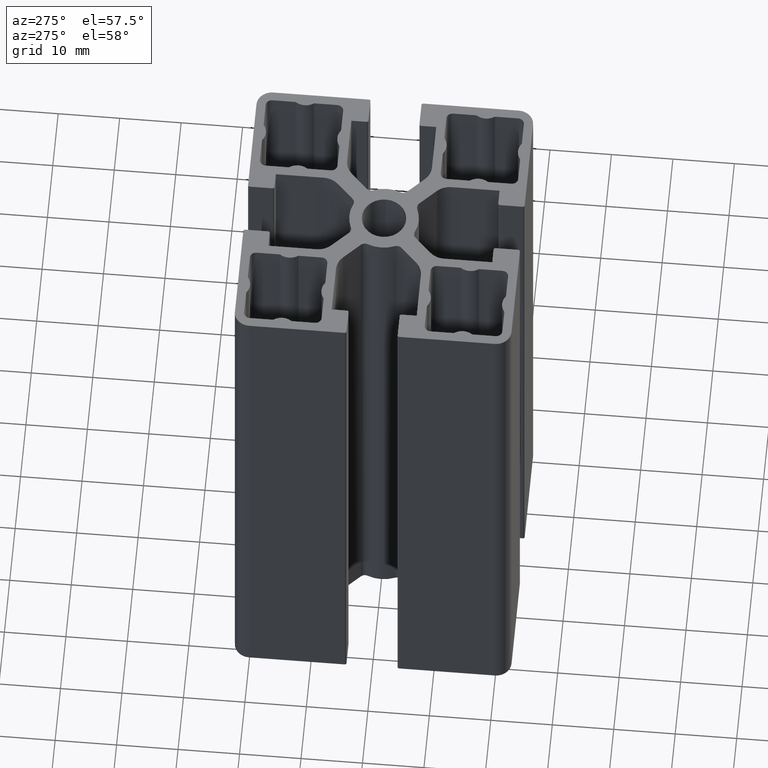
[diagram: clean part render]
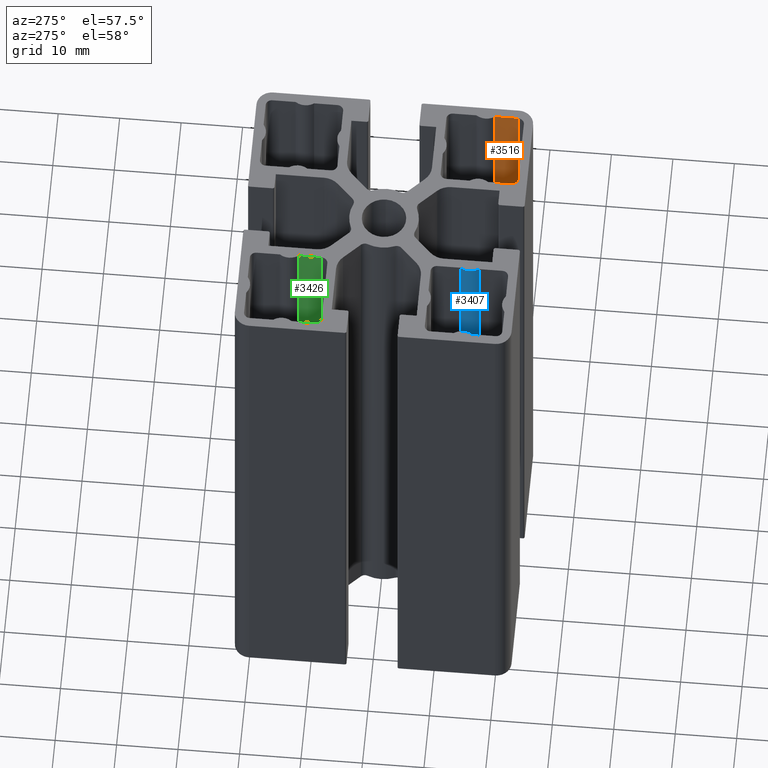
[diagram: same view with three faces highlighted in distinct colors, each labeled with its STEP entity id]
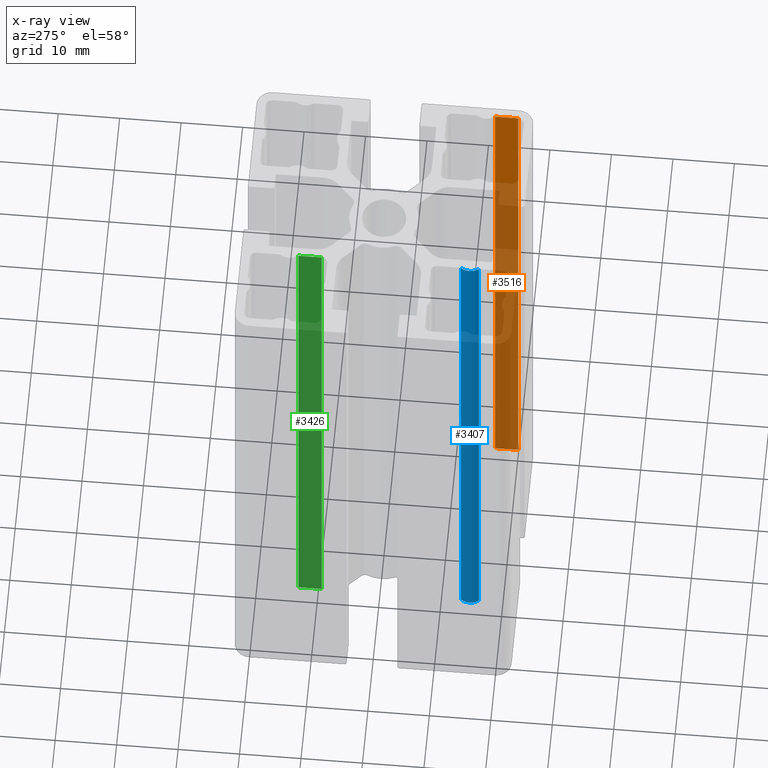
[diagram: x-ray of the same camera — body ghosted, the three highlighted faces saturated]
A machine part, auxiliary view with three faces highlighted in distinct colors.
The next image is the same camera in x-ray (body ghosted, the three faces saturated) — at least one of them is partly hidden behind the body in this view.
Their STEP definitions:

[orange] entity #3516 — the highlighted planar face has unit normal (1, 0, 0).
#489=FACE_OUTER_BOUND('',#669,.T.);
#669=EDGE_LOOP('',(#2824,#2825,#2826,#2827));
#977=LINE('',#5939,#1297);
#978=LINE('',#5943,#1298);
#979=LINE('',#5945,#1299);
#980=LINE('',#5946,#1300);
#1297=VECTOR('',#4861,100.);
#1298=VECTOR('',#4866,3.76702902832445);
#1299=VECTOR('',#4867,100.);
#1300=VECTOR('',#4868,3.76702902832445);
#1654=VERTEX_POINT('',#5936);
#1655=VERTEX_POINT('',#5938);
#1656=VERTEX_POINT('',#5942);
#1657=VERTEX_POINT('',#5944);
#2150=EDGE_CURVE('',#1655,#1654,#977,.T.);
#2152=EDGE_CURVE('',#1656,#1654,#978,.T.);
#2153=EDGE_CURVE('',#1657,#1656,#979,.T.);
#2154=EDGE_CURVE('',#1655,#1657,#980,.T.);
#2824=ORIENTED_EDGE('',*,*,#2152,.F.);
#2825=ORIENTED_EDGE('',*,*,#2153,.F.);
#2826=ORIENTED_EDGE('',*,*,#2154,.F.);
#2827=ORIENTED_EDGE('',*,*,#2150,.T.);
#3352=PLANE('',#3877);
#3516=ADVANCED_FACE('',(#489),#3352,.F.);
#3877=AXIS2_PLACEMENT_3D('',#5941,#4864,#4865);
#4861=DIRECTION('',(0.,0.,1.));
#4864=DIRECTION('center_axis',(1.,0.,0.));
#4865=DIRECTION('ref_axis',(0.,1.,0.));
#4866=DIRECTION('',(0.,-1.,0.));
#4867=DIRECTION('',(0.,0.,1.));
#4868=DIRECTION('',(0.,1.,0.));
#5936=CARTESIAN_POINT('',(21.,-20.,100.));
#5938=CARTESIAN_POINT('',(21.,-20.,0.));
#5939=CARTESIAN_POINT('',(21.,-20.,0.));
#5941=CARTESIAN_POINT('Origin',(21.,-20.,0.));
#5942=CARTESIAN_POINT('',(21.,-16.2329709716756,100.));
#5943=CARTESIAN_POINT('',(21.,-10.,100.));
#5944=CARTESIAN_POINT('',(21.,-16.2329709716756,0.));
#5945=CARTESIAN_POINT('',(21.,-16.2329709716756,0.));
#5946=CARTESIAN_POINT('',(21.,-10.,0.));

[blue] entity #3407 — the highlighted cylindrical surface (edge-blend (fillet) strip) has radius 2.5 mm, axis along (0, 0, 1).
#78=CIRCLE('',#3641,2.5);
#79=CIRCLE('',#3642,2.5);
#262=CYLINDRICAL_SURFACE('',#3640,2.5);
#380=FACE_OUTER_BOUND('',#559,.T.);
#559=EDGE_LOOP('',(#2390,#2391,#2392,#2393));
#775=LINE('',#5275,#1095);
#776=LINE('',#5281,#1096);
#1095=VECTOR('',#4187,100.);
#1096=VECTOR('',#4194,100.);
#1428=VERTEX_POINT('',#5271);
#1429=VERTEX_POINT('',#5273);
#1430=VERTEX_POINT('',#5277);
#1431=VERTEX_POINT('',#5279);
#1821=EDGE_CURVE('',#1429,#1428,#775,.T.);
#1822=EDGE_CURVE('',#1428,#1430,#78,.T.);
#1823=EDGE_CURVE('',#1431,#1429,#79,.T.);
#1824=EDGE_CURVE('',#1431,#1430,#776,.T.);
#2390=ORIENTED_EDGE('',*,*,#1822,.F.);
#2391=ORIENTED_EDGE('',*,*,#1821,.F.);
#2392=ORIENTED_EDGE('',*,*,#1823,.F.);
#2393=ORIENTED_EDGE('',*,*,#1824,.T.);
#3407=ADVANCED_FACE('',(#380),#262,.T.);
#3640=AXIS2_PLACEMENT_3D('',#5276,#4188,#4189);
#3641=AXIS2_PLACEMENT_3D('',#5278,#4190,#4191);
#3642=AXIS2_PLACEMENT_3D('',#5280,#4192,#4193);
#4187=DIRECTION('',(0.,0.,1.));
#4188=DIRECTION('center_axis',(0.,0.,1.));
#4189=DIRECTION('ref_axis',(-0.807692307692308,0.589604219875227,0.));
#4190=DIRECTION('center_axis',(0.,0.,1.));
#4191=DIRECTION('ref_axis',(-0.807692307692308,0.589604219875227,0.));
#4192=DIRECTION('center_axis',(0.,0.,-1.));
#4193=DIRECTION('ref_axis',(-0.807692307692308,0.589604219875227,0.));
#4194=DIRECTION('',(0.,0.,1.));
#5271=CARTESIAN_POINT('',(-8.41923076923078,-13.2259894503119,100.));
#5273=CARTESIAN_POINT('',(-8.41923076923078,-13.2259894503119,0.));
#5275=CARTESIAN_POINT('',(-8.41923076923078,-13.2259894503119,0.));
#5276=CARTESIAN_POINT('Origin',(-6.40000000000001,-14.7,0.));
#5277=CARTESIAN_POINT('',(-8.41923076923079,-16.1740105496881,100.));
#5278=CARTESIAN_POINT('Origin',(-6.40000000000001,-14.7,100.));
#5279=CARTESIAN_POINT('',(-8.41923076923079,-16.1740105496881,0.));
#5280=CARTESIAN_POINT('Origin',(-6.40000000000001,-14.7,0.));
#5281=CARTESIAN_POINT('',(-8.41923076923079,-16.1740105496881,0.));

[green] entity #3426 — the highlighted planar face has unit normal (1, 0, 0).
#399=FACE_OUTER_BOUND('',#578,.T.);
#578=EDGE_LOOP('',(#2466,#2467,#2468,#2469));
#806=LINE('',#5388,#1126);
#807=LINE('',#5392,#1127);
#808=LINE('',#5394,#1128);
#809=LINE('',#5395,#1129);
#1126=VECTOR('',#4306,100.);
#1127=VECTOR('',#4311,3.76702902832444);
#1128=VECTOR('',#4312,100.);
#1129=VECTOR('',#4313,3.76702902832444);
#1466=VERTEX_POINT('',#5385);
#1467=VERTEX_POINT('',#5387);
#1468=VERTEX_POINT('',#5391);
#1469=VERTEX_POINT('',#5393);
#1877=EDGE_CURVE('',#1467,#1466,#806,.T.);
#1879=EDGE_CURVE('',#1468,#1466,#807,.T.);
#1880=EDGE_CURVE('',#1469,#1468,#808,.T.);
#1881=EDGE_CURVE('',#1467,#1469,#809,.T.);
#2466=ORIENTED_EDGE('',*,*,#1879,.F.);
#2467=ORIENTED_EDGE('',*,*,#1880,.F.);
#2468=ORIENTED_EDGE('',*,*,#1881,.F.);
#2469=ORIENTED_EDGE('',*,*,#1877,.T.);
#3313=PLANE('',#3685);
#3426=ADVANCED_FACE('',(#399),#3313,.F.);
#3685=AXIS2_PLACEMENT_3D('',#5390,#4309,#4310);
#4306=DIRECTION('',(0.,0.,1.));
#4309=DIRECTION('center_axis',(1.,2.35776898192681E-15,0.));
#4310=DIRECTION('ref_axis',(-2.30926389122033E-15,1.,0.));
#4311=DIRECTION('',(2.35776898192681E-15,-1.,0.));
#4312=DIRECTION('',(0.,0.,1.));
#4313=DIRECTION('',(-2.35776898192681E-15,1.,0.));
#5385=CARTESIAN_POINT('',(-8.4,9.39999999999998,100.));
#5387=CARTESIAN_POINT('',(-8.4,9.39999999999998,0.));
#5388=CARTESIAN_POINT('',(-8.4,9.39999999999998,0.));
#5390=CARTESIAN_POINT('Origin',(-8.4,9.39999999999998,0.));
#5391=CARTESIAN_POINT('',(-8.40000000000001,13.1670290283244,100.));
#5392=CARTESIAN_POINT('',(-8.39999999999999,4.69999999999998,100.));
#5393=CARTESIAN_POINT('',(-8.40000000000001,13.1670290283244,0.));
#5394=CARTESIAN_POINT('',(-8.40000000000001,13.1670290283244,0.));
#5395=CARTESIAN_POINT('',(-8.39999999999999,4.69999999999998,0.));